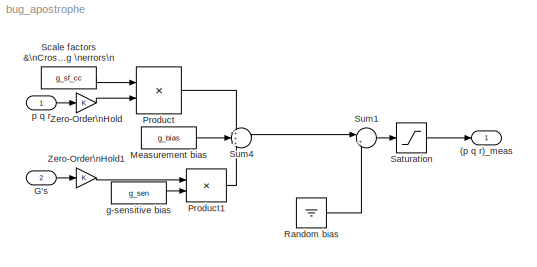
MODEL bug_apostrophe
KIND model
BLOCK [Outport] (p q r)_meas
  IconDisplay = Port number
  SID = 14
BLOCK [Inport] G's
  IconDisplay = Port number
  Port = 2
  PortDimensions = 3
  SID = 2
BLOCK [Constant] Measurement bias
  SID = 3
  Value = g_bias
BLOCK [Product] Product
  InputSameDT = off
  Multiplication = Matrix(*)
  Ports = [2, 1]
  RndMeth = Floor
  SID = 4
BLOCK [Product] Product1
  InputSameDT = off
  Ports = [2, 1]
  RndMeth = Floor
  SID = 5
BLOCK [Ground] Random bias
  SID = 6
BLOCK [Saturate] Saturation
  InputPortMap = u0
  LowerLimit = g_sat(1:3)
  Ports = [1, 1]
  SID = 7
  UpperLimit = g_sat(4:6)
BLOCK [Constant] Scale factors &\nCross-coupling \nerrors\n
  SID = 8
  Value = g_sf_cc
BLOCK [Sum] Sum1
  IconShape = round
  InputSameDT = off
  Inputs = |++
  OutDataTypeStr = Inherit: Inherit via internal rule
  Ports = [2, 1]
  SID = 9
BLOCK [Sum] Sum4
  IconShape = round
  InputSameDT = off
  Inputs = +++
  OutDataTypeStr = Inherit: Inherit via internal rule
  Ports = [3, 1]
  SID = 10
BLOCK [Gain] Zero-Order\nHold
  SID = 11
BLOCK [Gain] Zero-Order\nHold1
  SID = 12
BLOCK [Constant] g-sensitive bias
  SID = 13
  Value = g_sen
BLOCK [Inport] p q r
  IconDisplay = Port number
  PortDimensions = 3
  SID = 1
LINE G's:1 -> Zero-Order\nHold1:1
LINE Measurement bias:1 -> Sum4:2
LINE Product1:1 -> Sum4:3
LINE Product:1 -> Sum4:1
LINE Random bias:1 -> Sum1:2
LINE Saturation:1 -> (p q r)_meas:1
LINE Scale factors &\nCross-coupling \nerrors\n:1 -> Product:1
LINE Sum1:1 -> Saturation:1
LINE Sum4:1 -> Sum1:1
LINE Zero-Order\nHold1:1 -> Product1:1
LINE Zero-Order\nHold:1 -> Product:2
LINE g-sensitive bias:1 -> Product1:2
LINE p q r:1 -> Zero-Order\nHold:1
